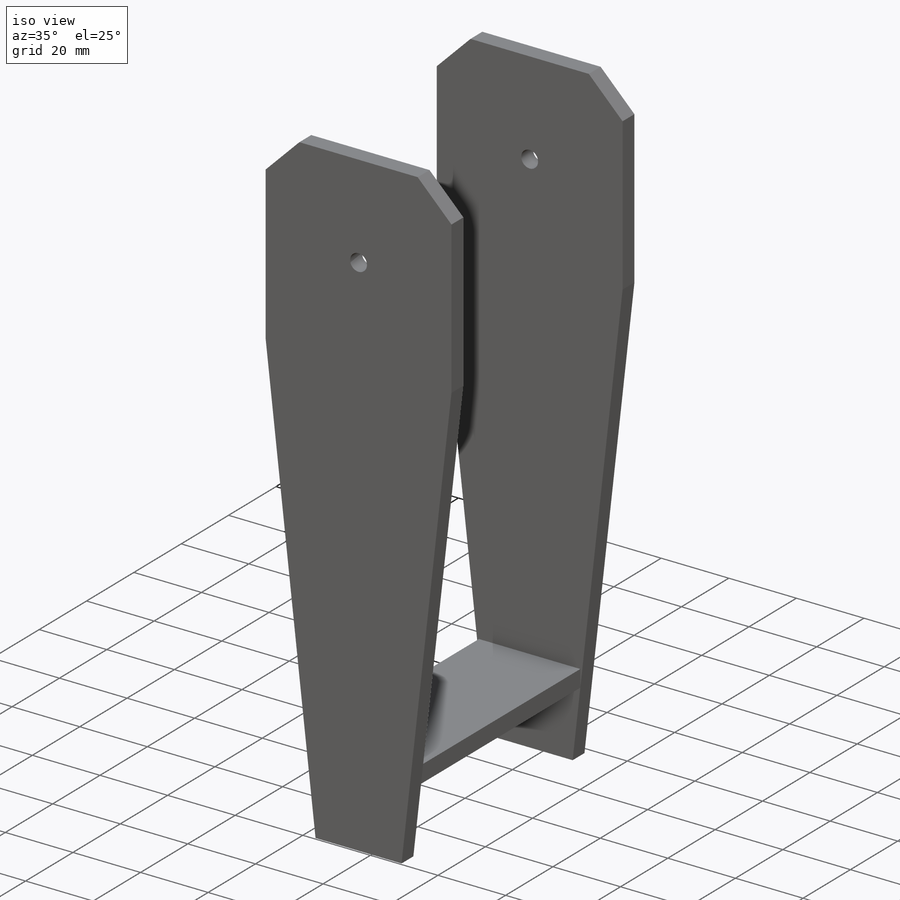
[diagram: iso view]
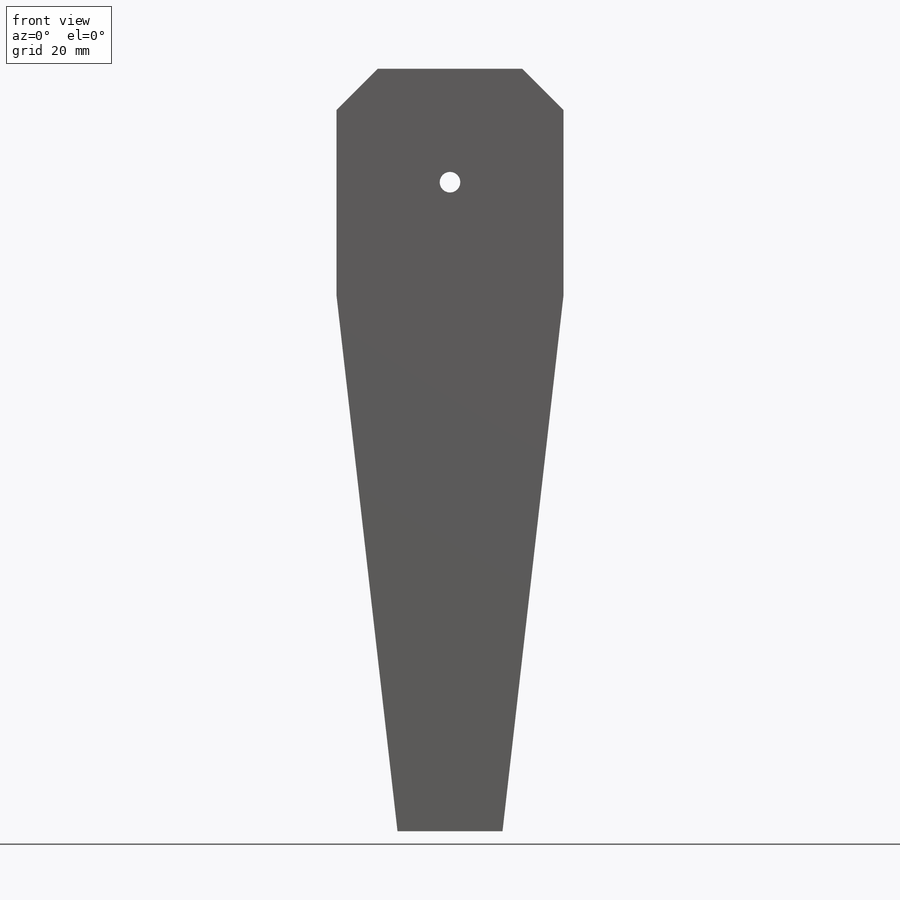
[diagram: front view]
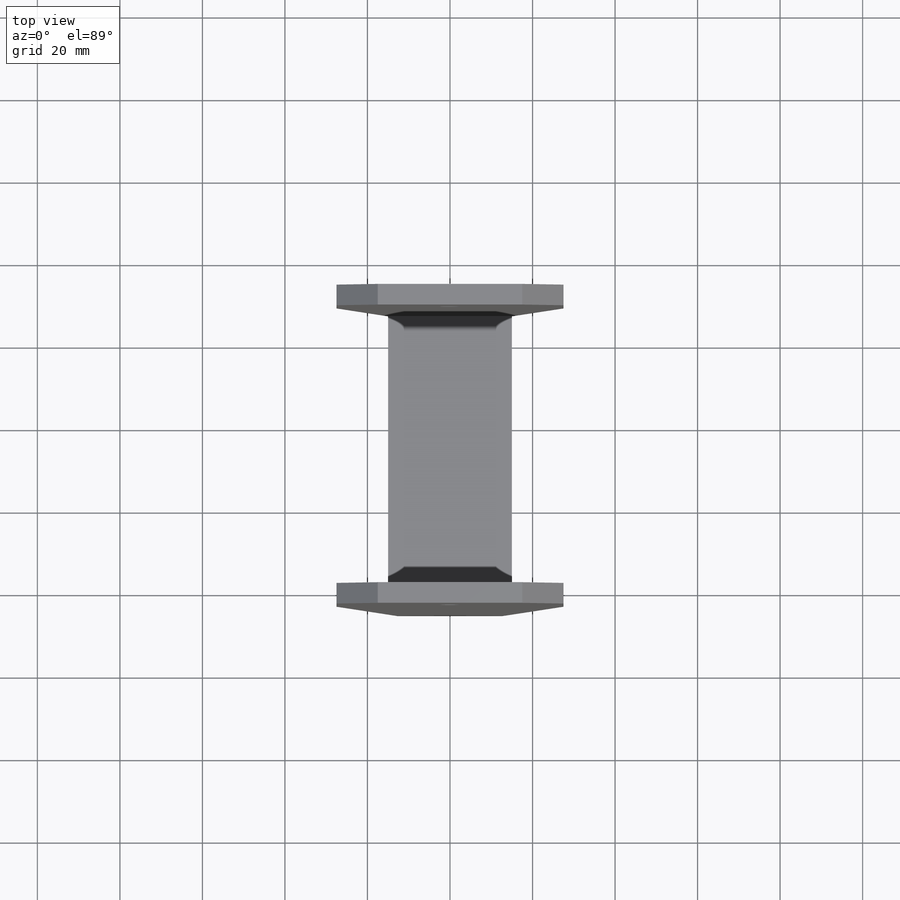
[diagram: top view]
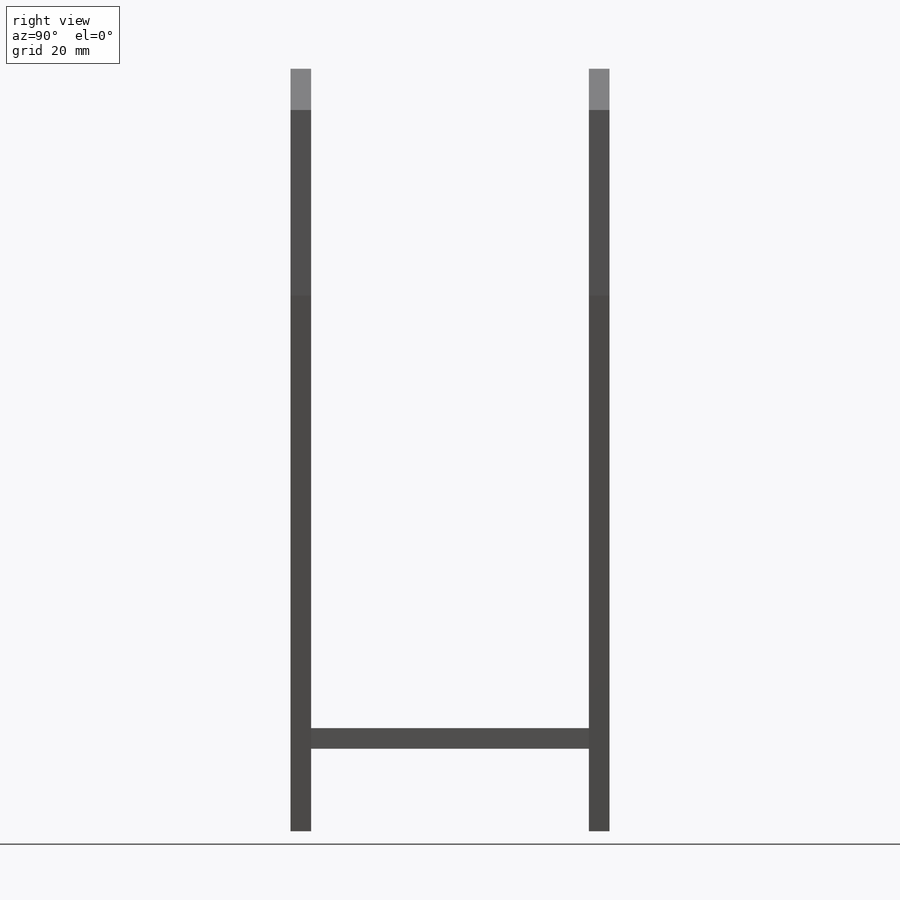
[diagram: right view]
SOLIDWORKS PART (.sldprt)
format: sldprt  version: not decoded by parser v0  size: 313,344 bytes
history: native  units: mm
features: sketch x10, extrude x7, plane x3, cut_extrude x3, material x1 (+9 scaffold rows collapsed)
feature tree (33):
  scaffold x9  (default folders/planes/origin — collapsed)
  material  "Material <not specified>"
  plane  "Ön Düzlem"
  plane  "Üst Düzlem"
  plane  "Sağ Düzlem"
  sketch  "Sketch1"  dims[D1=55.0mm D2=55.0mm D3=10.0mm D4=10.0mm D5=10.0mm D6=10.0mm]
  extrude  "Boss-Extrude1"  Depth=5mm
  sketch  "Sketch3"
  extrude  "Boss-Extrude2"  Depth=129.8mm
  sketch  "Sketch4"  dims[D1=5.0mm D2=20.0mm]
  extrude  "Boss-Extrude3"  Depth=67.3mm
  sketch  "Sketch5"
  extrude  "Boss-Extrude4"  Depth=5mm
  sketch  "Sketch6"  dims[c1.D1=30.0mm c1.D2=12.5mm c1.D3=55.0mm c2.D1=30.0mm c2.D2=20.0mm c2.D3=55.0mm]
  cut_extrude  "Cut-Extrude2"  [1 undecoded]
  sketch  "Sketch7"
  cut_extrude  "Cut-Extrude3"  Depth=5mm
  sketch  "Sketch8"
  cut_extrude  "Cut-Extrude4"  [1 undecoded]
  sketch  "Sketch9"  dims[D1=35.0mm D2=5.0mm]
  extrude  "Boss-Extrude5"  [1 undecoded]
  sketch  "Sketch10"  dims[D1=5.0mm D2=5.0mm]
  extrude  "Boss-Extrude6"  Depth=5mm
  sketch  "Sketch11"  dims[c1.D1=5.0mm c1.D2=~4.933352mm c2.D2=~83.505218deg c3.D2=5.0mm]
  extrude  "Boss-Extrude7"  Depth=5mm
decode coverage: 13 of 20 modeling features carry decoded parameters
note: ~ marks probable driven/reference dimensions
note: 3 parameter values undecoded
summary: no parameter record found for 3 features
note: suppression state not decoded; provenance and decode notes live in map.json
